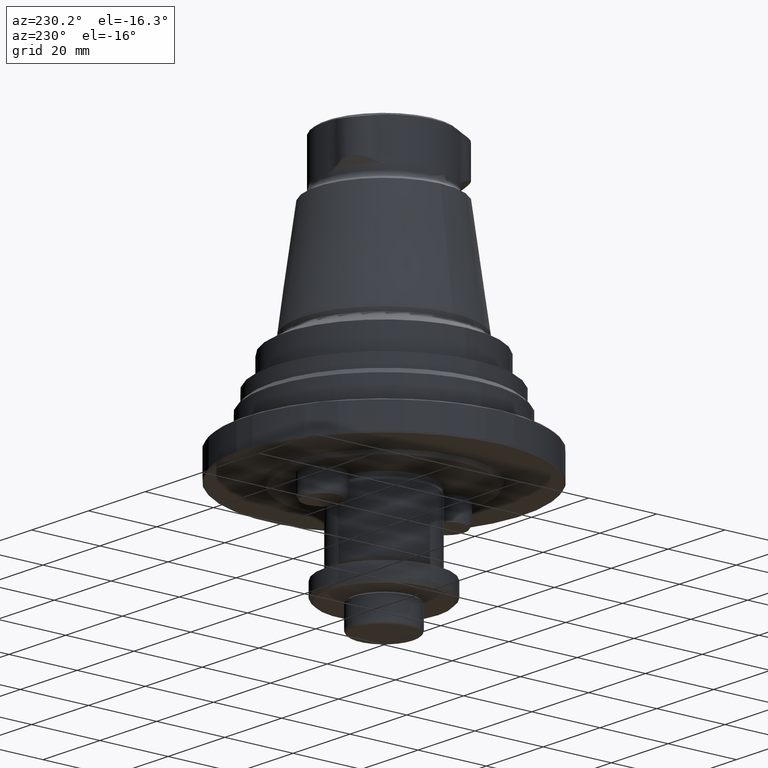
[diagram: clean part render]
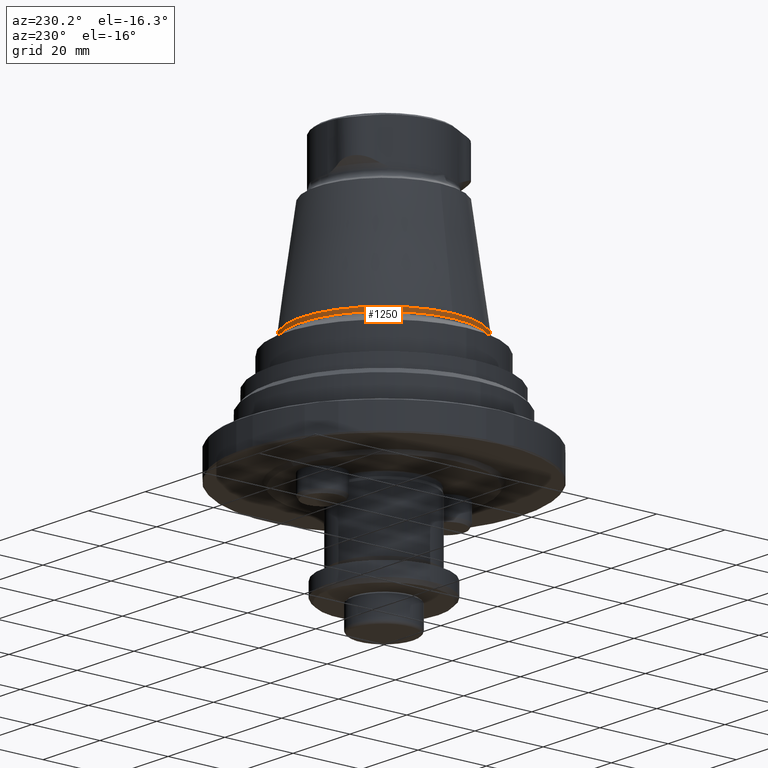
[diagram: same view with one face highlighted and labeled with its STEP entity id]
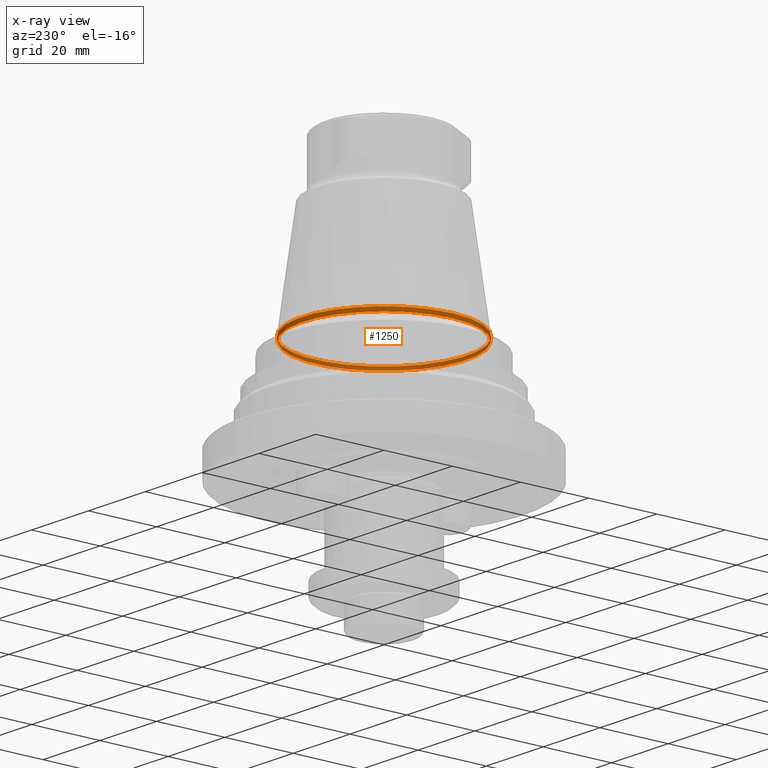
[diagram: x-ray of the same camera — body ghosted, the highlighted face saturated]
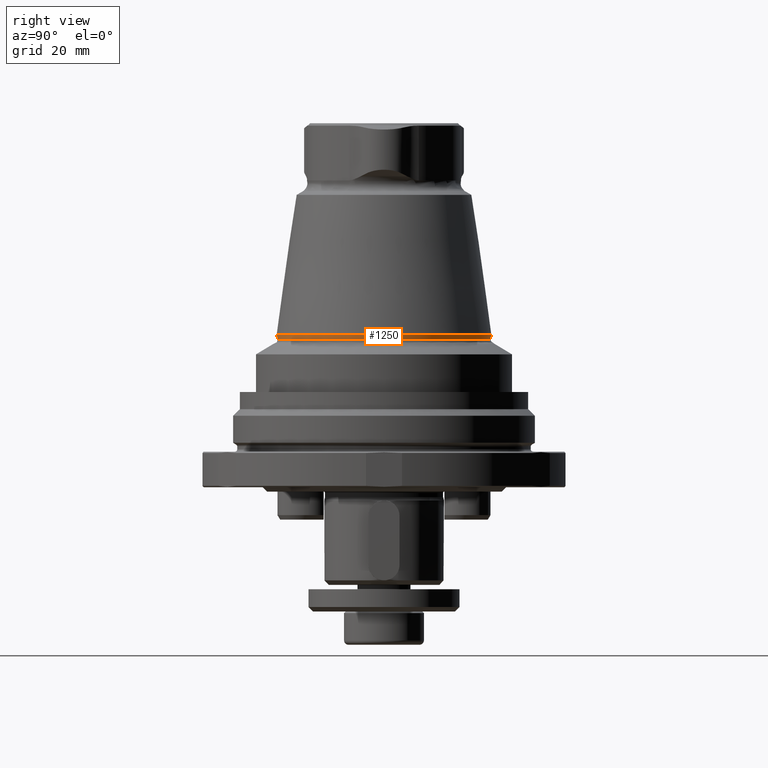
[diagram: same view with one face highlighted and labeled with its STEP entity id]
A machine part, auxiliary view. The second image highlights one B-rep face of the part: STEP entity #1250.
The next image is the same camera in x-ray: the body ghosted, the highlighted face saturated — about 46% of this face is hidden behind the body in this view.
A second angle (right view) of the same face is appended — the face is thin or edge-on in the first view.
In plain terms, the highlighted conical surface has half-angle 10 deg.
Its self-contained STEP definition (entity closure, byte-faithful):
#174=CONICAL_SURFACE('',#1414,24.0121537975902,0.174532925199432);
#547=ORIENTED_EDGE('',*,*,#716,.T.);
#548=ORIENTED_EDGE('',*,*,#717,.F.);
#716=EDGE_CURVE('',#836,#836,#907,.T.);
#717=EDGE_CURVE('',#837,#837,#908,.T.);
#836=VERTEX_POINT('',#2307);
#837=VERTEX_POINT('',#2310);
#907=CIRCLE('',#1413,24.2110659529869);
#908=CIRCLE('',#1415,24.0121537975902);
#1026=EDGE_LOOP('',(#547));
#1027=EDGE_LOOP('',(#548));
#1151=FACE_BOUND('',#1026,.T.);
#1152=FACE_BOUND('',#1027,.T.);
#1250=ADVANCED_FACE('',(#1151,#1152),#174,.T.);
#1413=AXIS2_PLACEMENT_3D('',#2306,#1759,#1760);
#1414=AXIS2_PLACEMENT_3D('',#2308,#1761,#1762);
#1415=AXIS2_PLACEMENT_3D('',#2309,#1763,#1764);
#1759=DIRECTION('',(1.22461692971323E-16,-7.49836836562635E-33,-1.));
#1760=DIRECTION('',(-1.,6.12303176911189E-17,-1.22461692971323E-16));
#1761=DIRECTION('',(-1.22461692971323E-16,7.49836836562635E-33,1.));
#1762=DIRECTION('',(1.,-6.12303176911189E-17,1.22461692971323E-16));
#1763=DIRECTION('',(1.22461692971323E-16,-7.49836836562635E-33,-1.));
#1764=DIRECTION('',(-1.,6.12303176911189E-17,-1.22461692971323E-16));
#2306=CARTESIAN_POINT('',(5.82638272995627E-15,-3.56751265545271E-31,25.4237784865738));
#2307=CARTESIAN_POINT('',(-24.2110659529869,1.48245125994202E-15,25.4237784865737));
#2308=CARTESIAN_POINT('',(5.96453016039818E-15,-3.65210076599441E-31,24.2956915959715));
#2309=CARTESIAN_POINT('',(5.96453016039818E-15,-3.65210076599441E-31,24.2956915959715));
#2310=CARTESIAN_POINT('',(-24.0121537975902,1.47027180547446E-15,24.2956915959715));